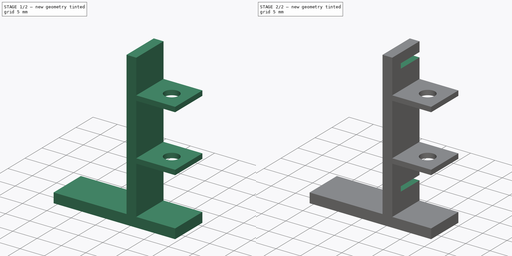
[diagram: build sequence overview — one tinted view per stage of 2, left to right]
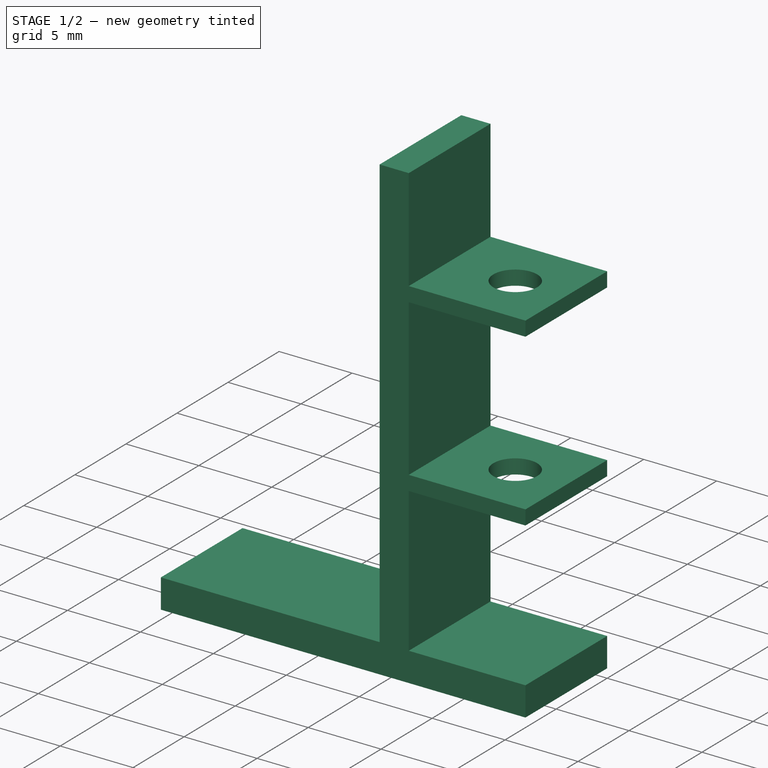
[diagram: stage 1 of 2 — iso view after this stage's code; geometry added in this stage tinted green]
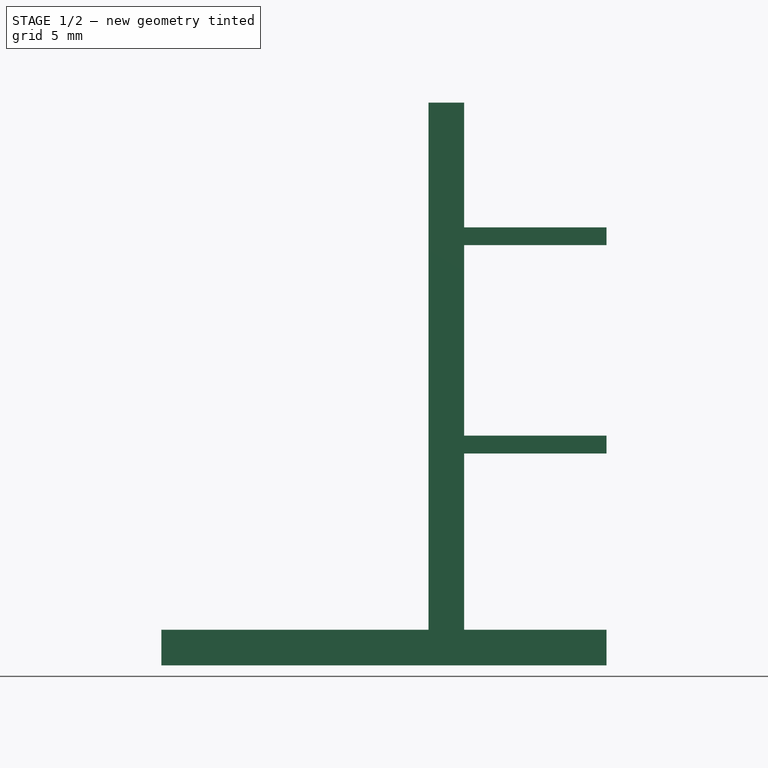
[diagram: stage 1 of 2 — front view after this stage's code; geometry added in this stage tinted green]
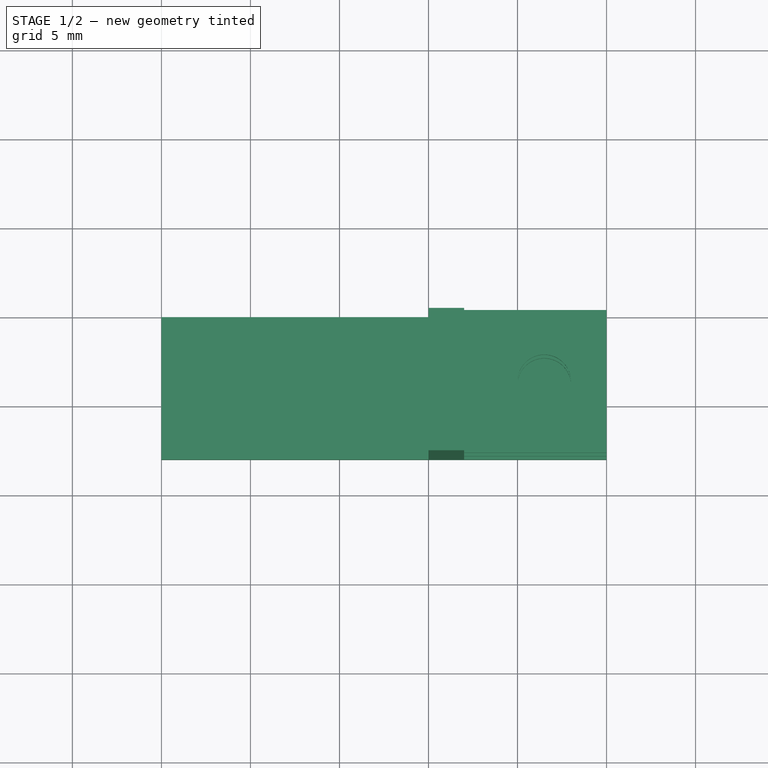
[diagram: stage 1 of 2 — top view after this stage's code; geometry added in this stage tinted green]
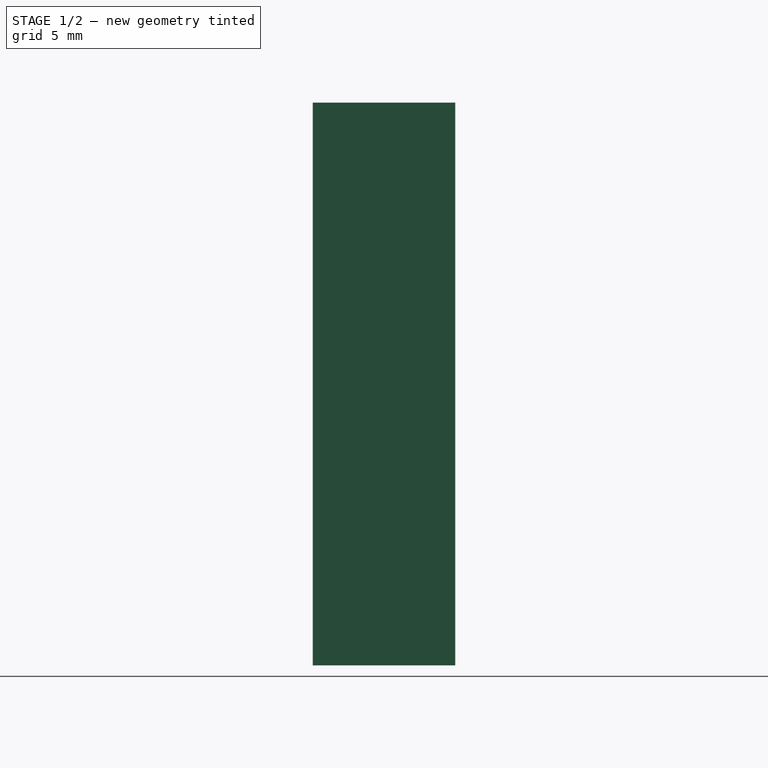
[diagram: stage 1 of 2 — right view after this stage's code; geometry added in this stage tinted green]
FCSTD DOCUMENT  (FreeCAD 0.15R4671 (Git))
Label: pgmount
License: All rights reserved
LicenseURL: http://en.wikipedia.org/wiki/All_rights_reserved
objects: Sketcher::SketchObject×3, PartDesign::Pocket×2, PartDesign::Pad×1
note: 9 computed .brp shape members not serialized (recipe doc carries the construction recipe); baked Part::Feature solids carry a one-line shape summary decoded from their .brp

FEATURE [Sketcher::SketchObject] Sketch
  Placement = pos=(0,0,0) rot=(1,0,0;1.5708rad)
  sketch-geometry (16):
    g0: LineSegment StartX=-15 StartY=-2 StartZ=0 EndX=10 EndY=-2 EndZ=0
    g1: LineSegment StartX=10 StartY=-2 StartZ=0 EndX=10 EndY=0 EndZ=0
    g2: LineSegment StartX=10 StartY=0 StartZ=0 EndX=2 EndY=0 EndZ=0
    g3: LineSegment StartX=2 StartY=0 StartZ=0 EndX=2 EndY=9.9 EndZ=0
    g4: LineSegment StartX=2 StartY=9.9 StartZ=0 EndX=10 EndY=9.9 EndZ=0
    g5: LineSegment StartX=10 StartY=9.9 StartZ=0 EndX=10 EndY=10.9 EndZ=0
    g6: LineSegment StartX=10 StartY=10.9 StartZ=0 EndX=2 EndY=10.9 EndZ=0
    g7: LineSegment StartX=2 StartY=10.9 StartZ=0 EndX=2 EndY=21.6 EndZ=0
    g8: LineSegment StartX=2 StartY=21.6 StartZ=0 EndX=10 EndY=21.6 EndZ=0
    g9: LineSegment StartX=10 StartY=21.6 StartZ=0 EndX=10 EndY=22.6 EndZ=0
    g10: LineSegment StartX=10 StartY=22.6 StartZ=0 EndX=2 EndY=22.6 EndZ=0
    g11: LineSegment StartX=2 StartY=22.6 StartZ=0 EndX=2 EndY=29.6 EndZ=0
    g12: LineSegment StartX=2 StartY=29.6 StartZ=0 EndX=0 EndY=29.6 EndZ=0
    g13: LineSegment StartX=0 StartY=29.6 StartZ=0 EndX=0 EndY=0 EndZ=0
    g14: LineSegment StartX=0 StartY=0 StartZ=0 EndX=-15 EndY=0 EndZ=0
    g15: LineSegment StartX=-15 StartY=0 StartZ=0 EndX=-15 EndY=-2 EndZ=0
  constraints (47):
    c: Horizontal(g0)
    c: Coincident(g0,g1)
    c: Vertical(g1)
    c: Coincident(g1,g2)
    c: Horizontal(g2)
    c: Coincident(g2,g3)
    c: Vertical(g3)
    c: Coincident(g3,g4)
    c: Coincident(g4,g5)
    c: Vertical(g5)
    c: Coincident(g5,g6)
    c: Horizontal(g6)
    c: Coincident(g6,g7)
    c: Vertical(g7)
    c: Coincident(g7,g8)
    c: Horizontal(g8)
    c: Coincident(g8,g9)
    c: Coincident(g9,g10)
    c: Horizontal(g10)
    c: Coincident(g10,g11)
    c: Vertical(g11)
    c: Coincident(g11,g12)
    c: Coincident(g12,g13)
    c: Vertical(g13)
    c: Coincident(g13,g14)
    c: Horizontal(g14)
    c: Coincident(g14,g15)
    c: Coincident(g15,g0)
    c: Horizontal(g4)
    c: Vertical(g15)
    c: Vertical(g9)
    c: Horizontal(g12)
    c: DistanceX(g8,g5) = 0
    c: DistanceX(g7,g10) = 0
    c: DistanceX(g3,g6) = 0
    c: DistanceX(g12) = -2
    c: DistanceY(g9) = 1
    c: DistanceY(g5) = 1
    c: DistanceY(g4,g9) = 12.7
    c: DistanceX(g3,g4) = 8
    c: DistanceY(g1,g0) = -2
    c: DistanceY(g14,g0) = -2
    c: DistanceX(g0,g4) = 0
    c: DistanceX(g14) = -15
    c: DistanceY(g11) = 7
    c: DistanceY(g0,g4) = 11.9
    c: Coincident(g13,g-1)
FEATURE [PartDesign::Pad] Pad
  Length = 8
  Length2 = 100
  Placement = pos=(0,0,0) rot=(1,0,0;1.5708rad)
  Sketch = -> Sketch
  Type = 0
FEATURE [Sketcher::SketchObject] Sketch001
  ExternalGeometry = -> [Pad]
  Placement = pos=(0,0,22.6) rot=(0,0,1;3.14159rad)
  Support = -> Pad [Face11]
  sketch-geometry (1):
    g0: Circle CenterX=-6.5 CenterY=4 CenterZ=0 NormalX=0 NormalY=0 NormalZ=1 Radius=1.5
  constraints (3):
    c: DistanceX(g0,g-3) = 4.5
    c: Radius(g0) = 1.5
    c: DistanceY(g0,g-4) = 4
FEATURE [PartDesign::Pocket] Pocket
  Length = 14
  Placement = pos=(0,0,0) rot=(1,0,0;1.5708rad)
  Sketch = -> Sketch001
  Type = 0
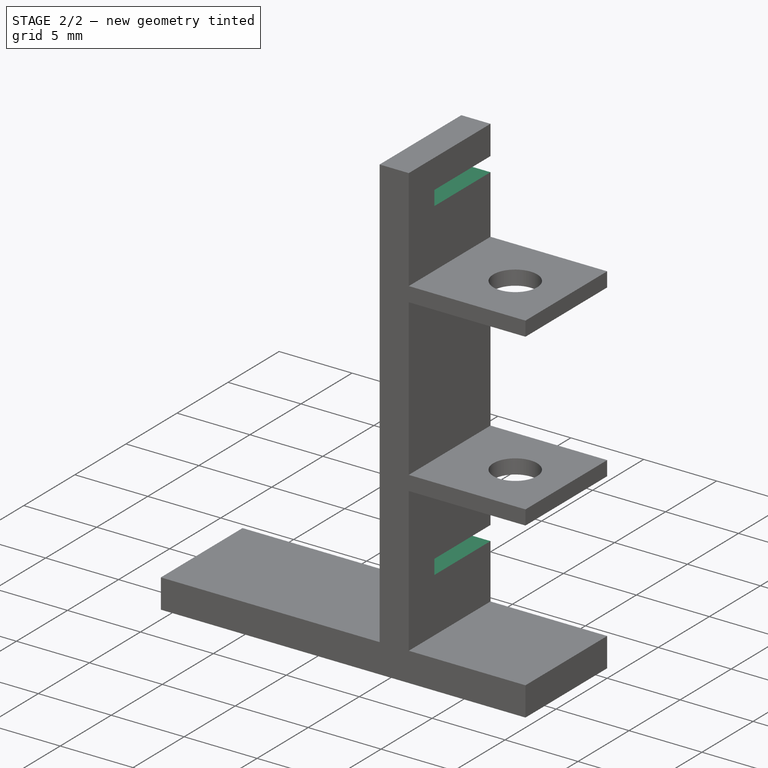
[diagram: stage 2 of 2 — iso view after this stage's code; geometry added in this stage tinted green]
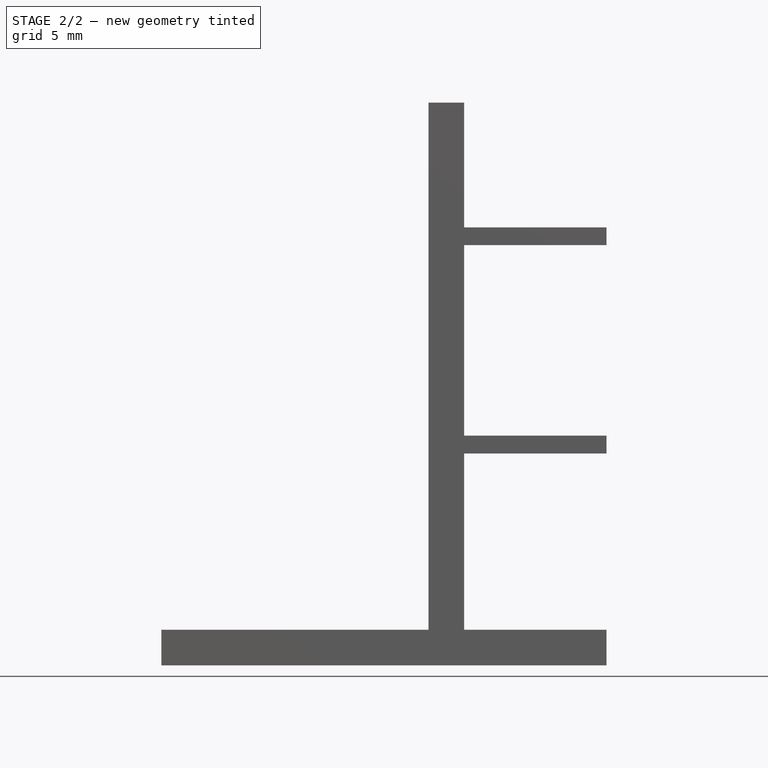
[diagram: stage 2 of 2 — front view after this stage's code; geometry added in this stage tinted green]
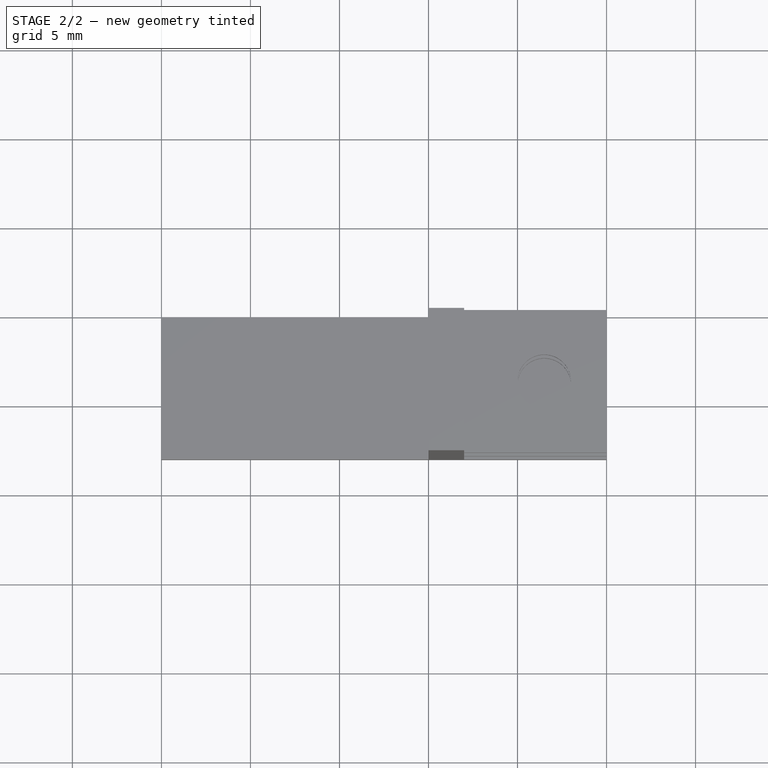
[diagram: stage 2 of 2 — top view after this stage's code; geometry added in this stage tinted green]
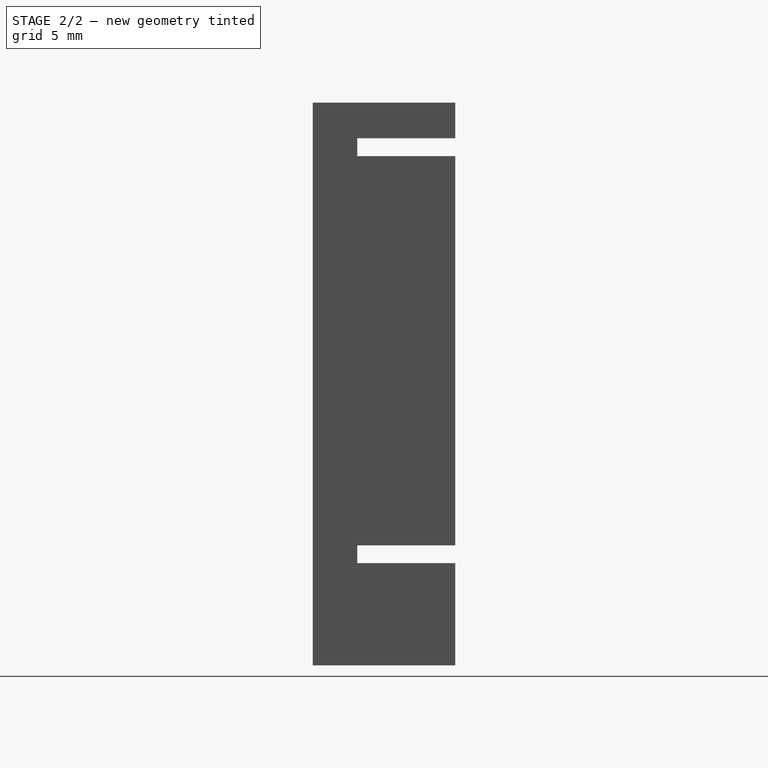
[diagram: stage 2 of 2 — right view after this stage's code; geometry added in this stage tinted green]
FEATURE [Sketcher::SketchObject] Sketch002
  ExternalGeometry = -> [Pocket]
  Placement = pos=(2,0,0) rot=(0.707107,0,0.707107;3.14159rad)
  Support = -> Pocket [Face16]
  sketch-geometry (8):
    g0: LineSegment StartX=27.6 StartY=5.5 StartZ=0 EndX=26.6 EndY=5.5 EndZ=0
    g1: LineSegment StartX=26.6 StartY=5.5 StartZ=0 EndX=26.6 EndY=-4.5 EndZ=0
    g2: LineSegment StartX=26.6 StartY=-4.5 StartZ=0 EndX=27.6 EndY=-4.5 EndZ=0
    g3: LineSegment StartX=27.6 StartY=-4.5 StartZ=0 EndX=27.6 EndY=5.5 EndZ=0
    g4: LineSegment StartX=3.74 StartY=5.5 StartZ=0 EndX=4.74 EndY=5.5 EndZ=0
    g5: LineSegment StartX=4.74 StartY=5.5 StartZ=0 EndX=4.74 EndY=-4.5 EndZ=0
    g6: LineSegment StartX=4.74 StartY=-4.5 StartZ=0 EndX=3.74 EndY=-4.5 EndZ=0
    g7: LineSegment StartX=3.74 StartY=-4.5 StartZ=0 EndX=3.74 EndY=5.5 EndZ=0
  constraints (24):
    c: Coincident(g0,g1)
    c: Coincident(g1,g2)
    c: Coincident(g2,g3)
    c: Coincident(g3,g0)
    c: Horizontal(g0)
    c: Horizontal(g2)
    c: Vertical(g1)
    c: Vertical(g3)
    c: DistanceX(g-3,g0) = 4
    c: DistanceX(g2) = 1
    c: DistanceY(g3) = 10
    c: DistanceY(g0,g-3) = 2.5
    c: Coincident(g4,g5)
    c: Coincident(g5,g6)
    c: Coincident(g6,g7)
    c: Coincident(g7,g4)
    c: Horizontal(g4)
    c: Horizontal(g6)
    c: Vertical(g5)
    c: Vertical(g7)
    c: DistanceY(g4,g0) = 0
    c: DistanceX(g4) = 1
    c: DistanceX(g4,g0) = 22.86
    c: DistanceY(g1,g5) = 0
FEATURE [PartDesign::Pocket] Pocket001
  Length = 5
  Placement = pos=(0,0,0) rot=(1,0,0;1.5708rad)
  Sketch = -> Sketch002
  Type = 0
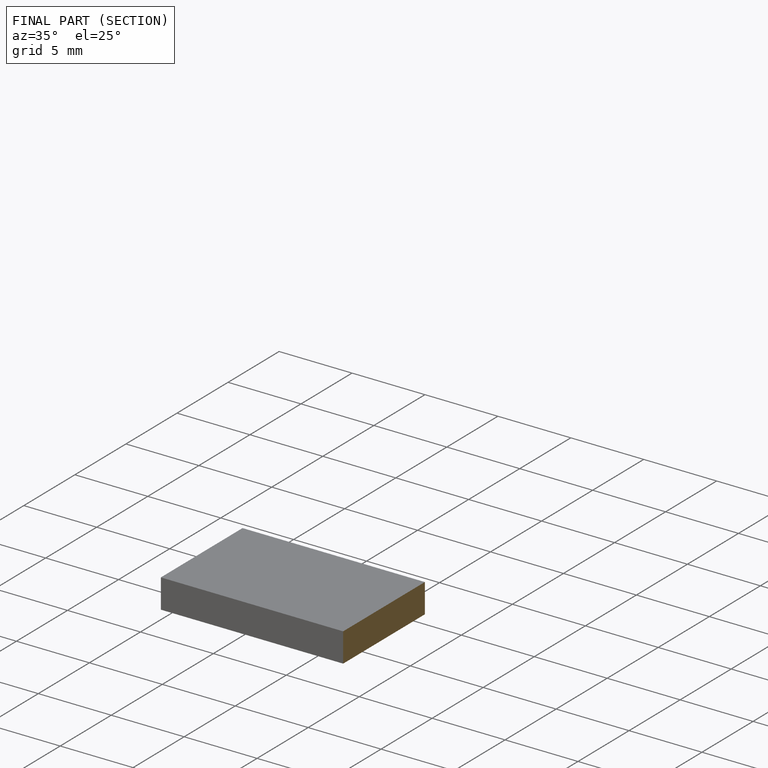
[diagram: finished part — half-section view (interior)]
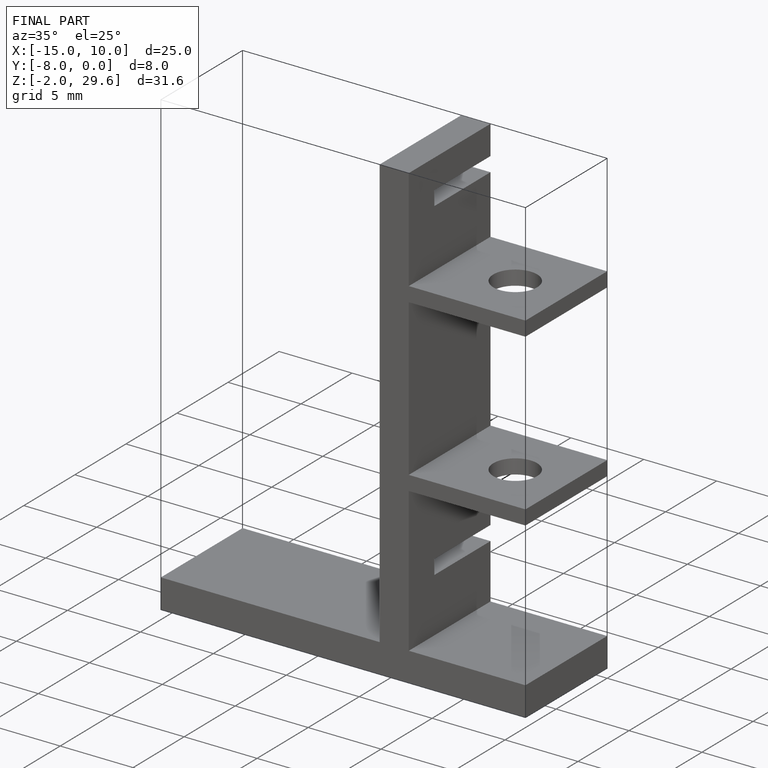
[diagram: finished part — iso view with bounding-box wireframe]
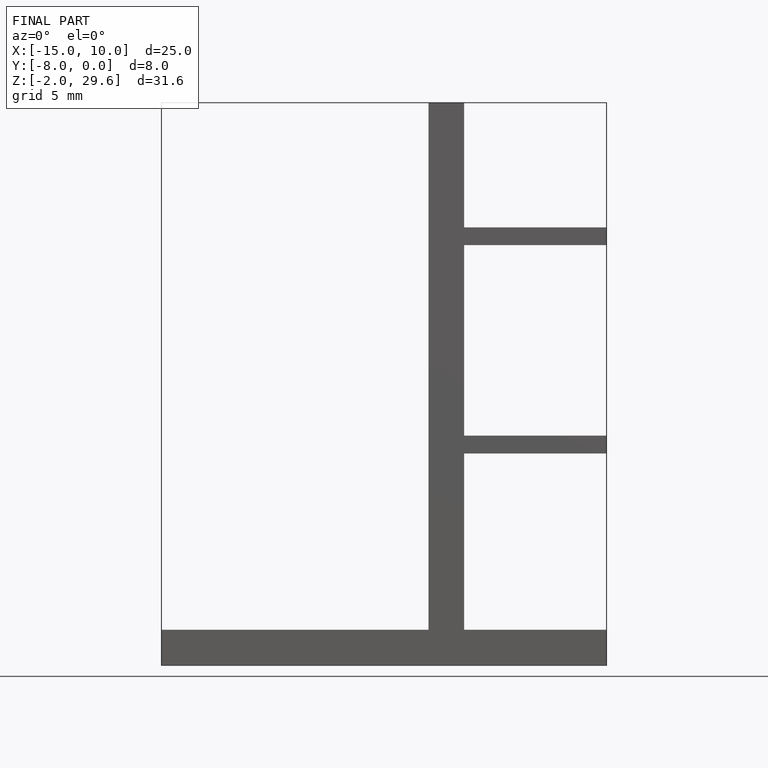
[diagram: finished part — front view with bounding-box wireframe]
